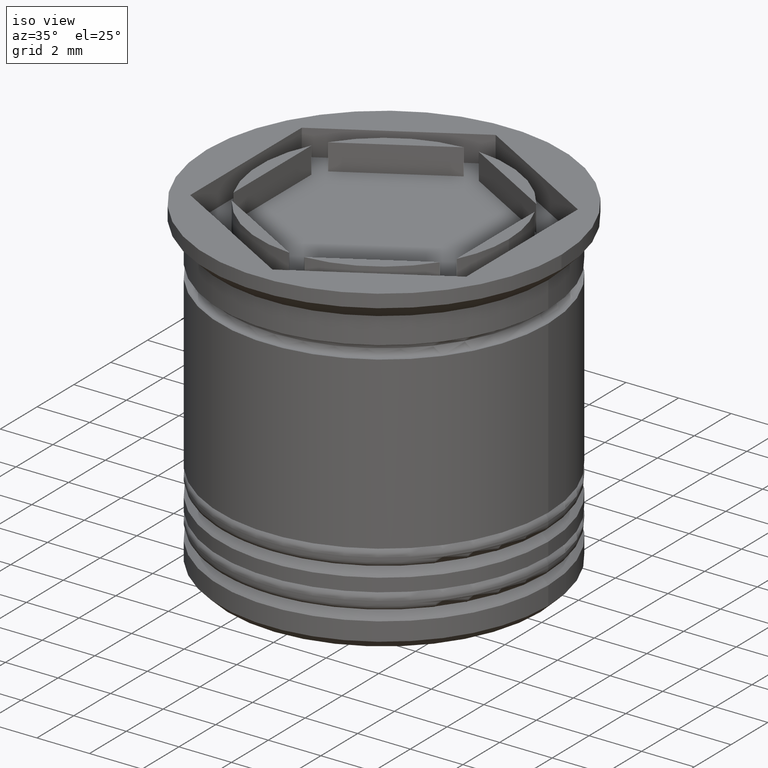
[diagram: clean part render]
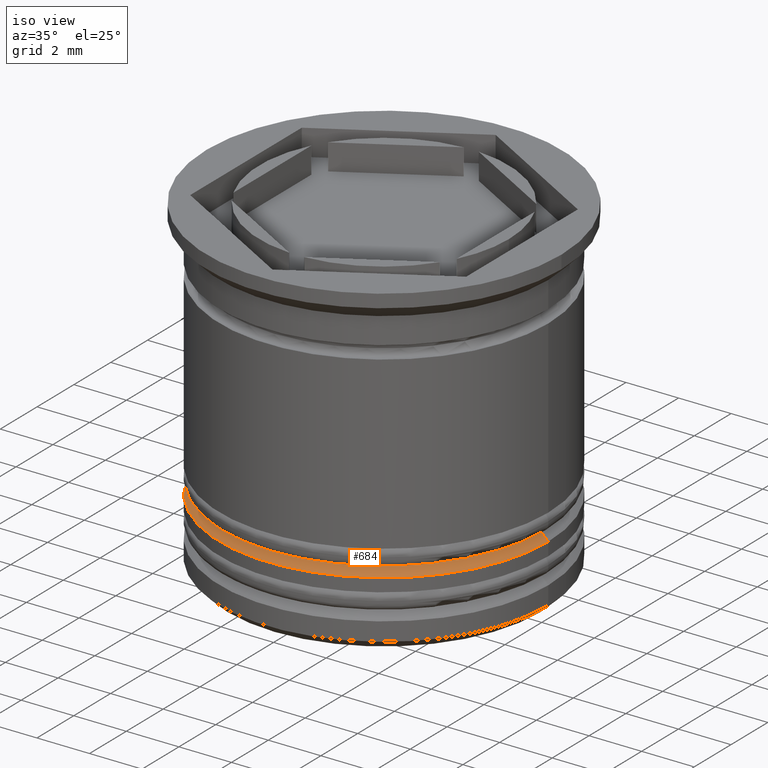
[diagram: same view with one face highlighted and labeled with its STEP entity id]
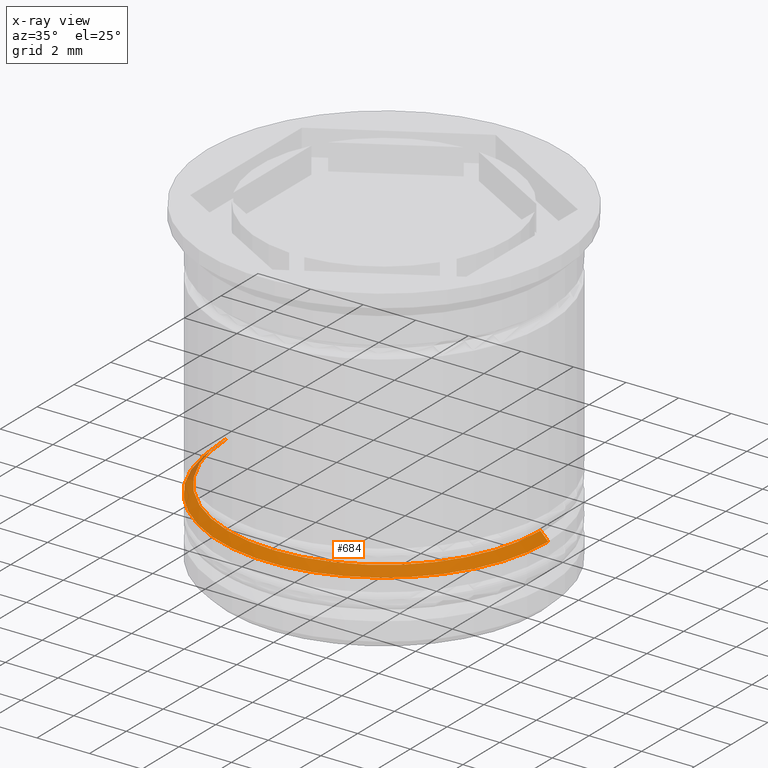
[diagram: x-ray of the same camera — body ghosted, the highlighted face saturated]
A machine part, iso view. The second image highlights one B-rep face of the part: STEP entity #684.
The next image is the same camera in x-ray: the body ghosted, the highlighted face saturated — about 2% of this face is hidden behind the body in this view.
In plain terms, the highlighted conical surface has half-angle 45 deg.
Its self-contained STEP definition (entity closure, byte-faithful):
#132 = ORIENTED_EDGE ( 'NONE', *, *, #1223, .F. ) ;
#133 = DIRECTION ( 'NONE',  ( -1.000000000000000000, 0.000000000000000000, 0.000000000000000000 ) ) ;
#182 = VERTEX_POINT ( 'NONE', #1387 ) ;
#208 = CARTESIAN_POINT ( 'NONE',  ( 6.250000000000000000, 0.000000000000000000, -10.00000000000000355 ) ) ;
#241 = VERTEX_POINT ( 'NONE', #374 ) ;
#260 = VERTEX_POINT ( 'NONE', #1296 ) ;
#373 = AXIS2_PLACEMENT_3D ( 'NONE', #1554, #831, #647 ) ;
#374 = CARTESIAN_POINT ( 'NONE',  ( -6.250000000000000000, 7.654042494670957606E-16, -10.00000000000000355 ) ) ;
#499 = ORIENTED_EDGE ( 'NONE', *, *, #1986, .F. ) ;
#522 = EDGE_CURVE ( 'NONE', #260, #1217, #1031, .T. ) ;
#563 = LINE ( 'NONE', #711, #1119 ) ;
#579 = CARTESIAN_POINT ( 'NONE',  ( 5.749999999999991118, 7.041719095097270033E-16, -9.500000000000000000 ) ) ;
#583 = CIRCLE ( 'NONE', #1939, 5.950000000000000178 ) ;
#631 = DIRECTION ( 'NONE',  ( -1.000000000000000000, 0.000000000000000000, 0.000000000000000000 ) ) ;
#647 = DIRECTION ( 'NONE',  ( 1.000000000000000000, 0.000000000000000000, 0.000000000000000000 ) ) ;
#684 = ADVANCED_FACE ( 'NONE', ( #1501 ), #867, .T. ) ;
#697 = DIRECTION ( 'NONE',  ( -0.7071067811865512365, 0.000000000000000000, -0.7071067811865439090 ) ) ;
#711 = CARTESIAN_POINT ( 'NONE',  ( -5.749999999999991118, 0.000000000000000000, -9.500000000000000000 ) ) ;
#831 = DIRECTION ( 'NONE',  ( 0.000000000000000000, 0.000000000000000000, -1.000000000000000000 ) ) ;
#867 = CONICAL_SURFACE ( 'NONE', #1572, 5.749999999999991118, 0.7853981633974533860 ) ;
#1031 = LINE ( 'NONE', #579, #1801 ) ;
#1045 = CARTESIAN_POINT ( 'NONE',  ( 0.000000000000000000, 0.000000000000000000, -9.500000000000000000 ) ) ;
#1108 = DIRECTION ( 'NONE',  ( -0.000000000000000000, -0.000000000000000000, 1.000000000000000000 ) ) ;
#1119 = VECTOR ( 'NONE', #697, 1000.000000000000000 ) ;
#1217 = VERTEX_POINT ( 'NONE', #208 ) ;
#1221 = CIRCLE ( 'NONE', #373, 6.250000000000000000 ) ;
#1223 = EDGE_CURVE ( 'NONE', #182, #260, #583, .T. ) ;
#1296 = CARTESIAN_POINT ( 'NONE',  ( 5.950000000000000178, 0.000000000000000000, -9.700000000000006395 ) ) ;
#1387 = CARTESIAN_POINT ( 'NONE',  ( -5.950000000000000178, 7.286648454926751965E-16, -9.700000000000006395 ) ) ;
#1418 = EDGE_CURVE ( 'NONE', #182, #241, #563, .T. ) ;
#1490 = DIRECTION ( 'NONE',  ( 0.000000000000000000, 0.000000000000000000, -1.000000000000000000 ) ) ;
#1499 = ORIENTED_EDGE ( 'NONE', *, *, #1418, .T. ) ;
#1501 = FACE_OUTER_BOUND ( 'NONE', #1670, .T. ) ;
#1554 = CARTESIAN_POINT ( 'NONE',  ( 0.000000000000000000, 0.000000000000000000, -10.00000000000000355 ) ) ;
#1572 = AXIS2_PLACEMENT_3D ( 'NONE', #1045, #1490, #133 ) ;
#1670 = EDGE_LOOP ( 'NONE', ( #1730, #132, #1499, #499 ) ) ;
#1695 = CARTESIAN_POINT ( 'NONE',  ( 0.000000000000000000, 0.000000000000000000, -9.700000000000006395 ) ) ;
#1730 = ORIENTED_EDGE ( 'NONE', *, *, #522, .F. ) ;
#1801 = VECTOR ( 'NONE', #1966, 1000.000000000000000 ) ;
#1939 = AXIS2_PLACEMENT_3D ( 'NONE', #1695, #1108, #631 ) ;
#1966 = DIRECTION ( 'NONE',  ( 0.7071067811865512365, 8.659560562354978464E-17, -0.7071067811865439090 ) ) ;
#1986 = EDGE_CURVE ( 'NONE', #1217, #241, #1221, .T. ) ;